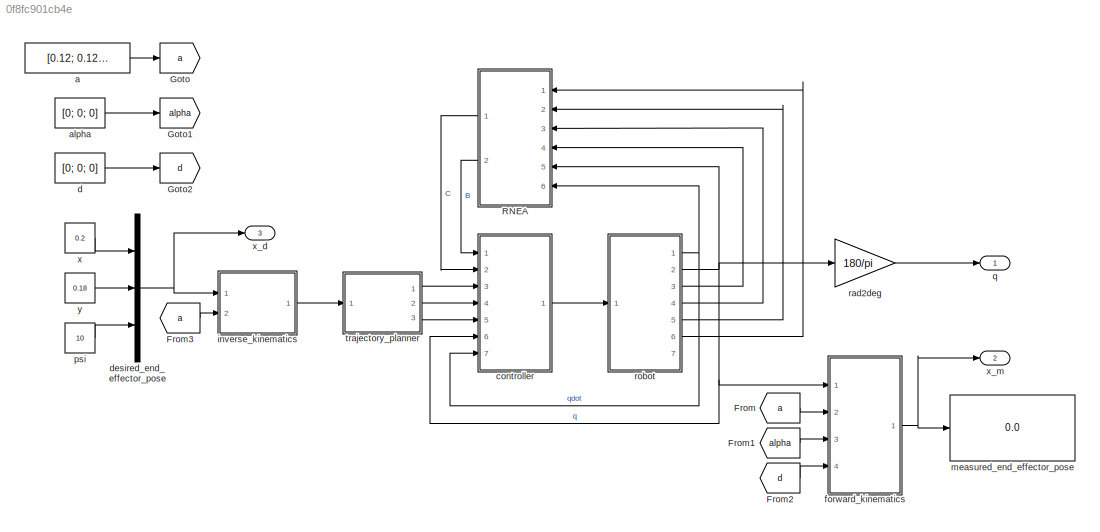
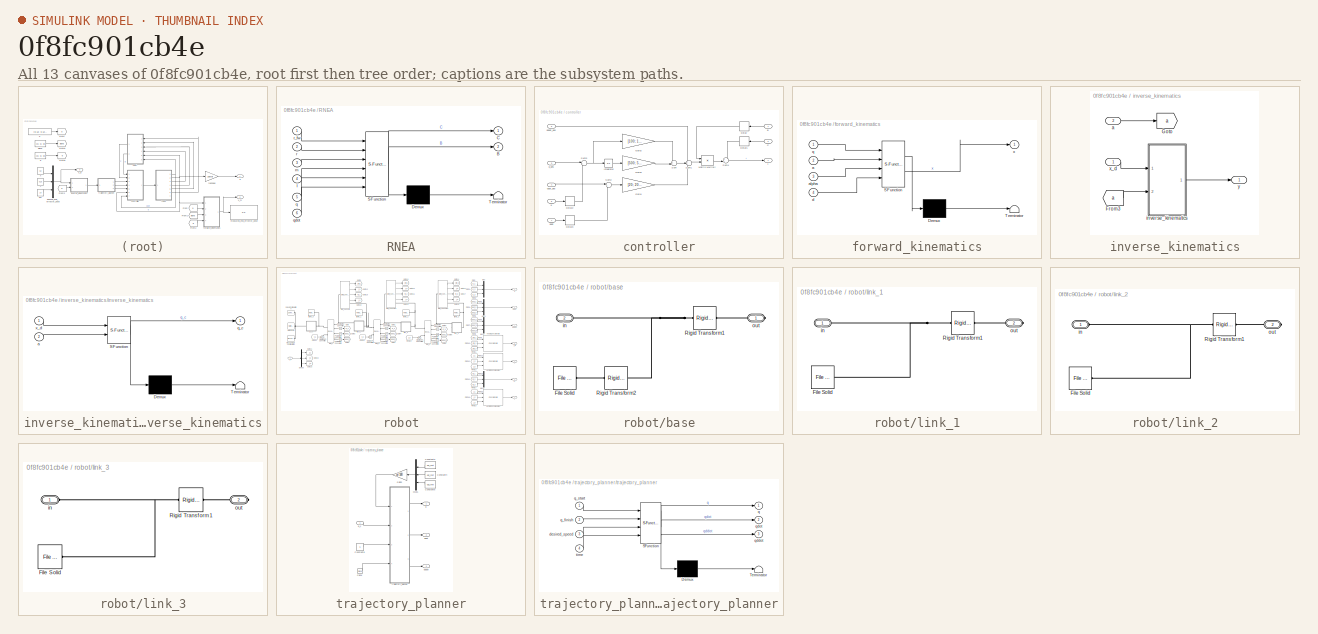
[diagram: thumbnail index - all 13 canvases of the model, root first then tree order]
MODEL slx_0f8fc901cb4e
KIND model
CONFIG AbsTol = 1e-3
CONFIG EnableMultiTasking = on
CONFIG FixedStep = auto
CONFIG InitFcn = parameters;
CONFIG MaxStep = 0.01
CONFIG MinStep = auto
CONFIG RelTol = 1e-3
CONFIG SampleTimeConstraint = Unconstrained
CONFIG SolverName = ode45
CONFIG StartTime = 0.0
CONFIG StopTime = 10
BLOCK [From] From
  GotoTag = a
BLOCK [From] From1
  GotoTag = alpha
BLOCK [From] From2
  GotoTag = d
BLOCK [From] From3
  GotoTag = a
BLOCK [Goto] Goto
  GotoTag = a
BLOCK [Goto] Goto1
  GotoTag = alpha
BLOCK [Goto] Goto2
  GotoTag = d
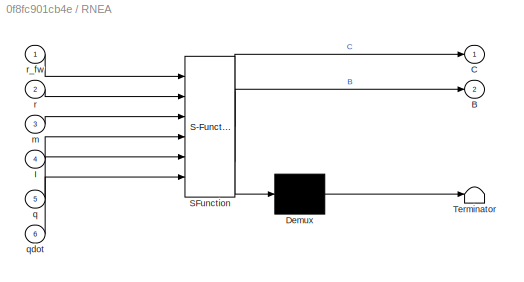
BLOCK [SubSystem] RNEA
  ErrorFcn = Stateflow.Translate.translate
  PermitHierarchicalResolution = ExplicitOnly
  Ports = [6, 2]
  RequestExecContextInheritance = off
  SFBlockType = MATLAB Function
  TreatAsAtomicUnit = on
BLOCK [Demux] RNEA/ Demux 
  Outputs = 1
  Ports = [1, 1]
BLOCK [S-Function] RNEA/ SFunction 
  EnableBusSupport = on
  FunctionName = sf_sfun
  Parameters = g
  PortCounts = [6 3]
  Ports = [6, 3]
  SFcnIsStateOwnerBlock = off
  SFunctionDeploymentMode = off
  Tag = Stateflow S-Function 3
BLOCK [Terminator] RNEA/ Terminator 
BLOCK [Outport] RNEA/B
  Port = 2
BLOCK [Outport] RNEA/C
BLOCK [Inport] RNEA/I
  Port = 4
BLOCK [Inport] RNEA/m
  Port = 3
BLOCK [Inport] RNEA/q
  Port = 5
BLOCK [Inport] RNEA/qdot
  Port = 6
BLOCK [Inport] RNEA/r
  Port = 2
BLOCK [Inport] RNEA/r_fw
BLOCK [Constant] a
  Value = [0.12; 0.12; 0.12]
BLOCK [Constant] alpha
  Value = [0; 0; 0]
BLOCK [SubSystem] controller
  Ports = [7, 1]
  RequestExecContextInheritance = off
BLOCK [Inport] controller/B
BLOCK [Inport] controller/C
  Port = 2
BLOCK [Delay] controller/Delay
  DelayLength = 1
  InputPortMap = u0
  NameLocation = top
  Ports = [1, 1]
BLOCK [Delay] controller/Delay1
  DelayLength = 1
  InputPortMap = u0
  NameLocation = top
  Ports = [1, 1]
BLOCK [Delay] controller/Delay2
  DelayLength = 1
  InputPortMap = u0
  Ports = [1, 1]
BLOCK [Delay] controller/Delay3
  DelayLength = 1
  InputPortMap = u0
  Ports = [1, 1]
BLOCK [Gain] controller/Gain2
  Gain = [100; 100; 100]
BLOCK [Gain] controller/Gain3
  Gain = [500; 500; 500]
BLOCK [Gain] controller/Gain4
  Gain = [20; 20; 20]
BLOCK [Integrator] controller/Integrator
  Ports = [1, 1]
BLOCK [Product] controller/Matrix Multiply
  Inputs = **
  Multiplication = Matrix(*)
  Ports = [2, 1]
BLOCK [Sum] controller/Sum
  Inputs = ++|
  Ports = [2, 1]
BLOCK [Sum] controller/Sum1
  Inputs = +++
  Ports = [3, 1]
BLOCK [Sum] controller/Sum2
  Inputs = |+-
  Ports = [2, 1]
BLOCK [Sum] controller/Sum3
  Inputs = |+-
  Ports = [2, 1]
BLOCK [Sum] controller/Sum4
  Inputs = ++|
  Ports = [2, 1]
BLOCK [Inport] controller/q
  Port = 6
BLOCK [Inport] controller/q_des
  Port = 3
BLOCK [Inport] controller/qddot_des
  Port = 5
BLOCK [Inport] controller/qdot
  Port = 7
BLOCK [Inport] controller/qdot_des
  Port = 4
BLOCK [Outport] controller/t
BLOCK [Constant] d
  Value = [0; 0; 0]
BLOCK [Mux] desired_end_effector_pose
  DisplayOption = bar
  Inputs = 3
  Ports = [3, 1]
BLOCK [SubSystem] forward_kinematics
  ErrorFcn = Stateflow.Translate.translate
  PermitHierarchicalResolution = ExplicitOnly
  Ports = [4, 1]
  RequestExecContextInheritance = off
  SFBlockType = MATLAB Function
  TreatAsAtomicUnit = on
BLOCK [Demux] forward_kinematics/ Demux 
  Outputs = 1
  Ports = [1, 1]
BLOCK [S-Function] forward_kinematics/ SFunction 
  EnableBusSupport = on
  FunctionName = sf_sfun
  PortCounts = [4 2]
  Ports = [4, 2]
  SFcnIsStateOwnerBlock = off
  SFunctionDeploymentMode = off
  Tag = Stateflow S-Function 4
BLOCK [Terminator] forward_kinematics/ Terminator 
BLOCK [Inport] forward_kinematics/a
  Port = 2
BLOCK [Inport] forward_kinematics/alpha
  Port = 3
BLOCK [Inport] forward_kinematics/d
  Port = 4
BLOCK [Inport] forward_kinematics/q
BLOCK [Outport] forward_kinematics/x
BLOCK [SubSystem] inverse_kinematics
  Ports = [2, 1]
  RequestExecContextInheritance = off
BLOCK [From] inverse_kinematics/From3
  GotoTag = a
BLOCK [Goto] inverse_kinematics/Goto
  GotoTag = a
BLOCK [Inport] inverse_kinematics/a
  Port = 2
BLOCK [SubSystem] inverse_kinematics/inverse_kinematics
  ErrorFcn = Stateflow.Translate.translate
  PermitHierarchicalResolution = ExplicitOnly
  Ports = [2, 1]
  RequestExecContextInheritance = off
  SFBlockType = MATLAB Function
  TreatAsAtomicUnit = on
BLOCK [Demux] inverse_kinematics/inverse_kinematics/ Demux 
  Outputs = 1
  Ports = [1, 1]
BLOCK [S-Function] inverse_kinematics/inverse_kinematics/ SFunction 
  EnableBusSupport = on
  FunctionName = sf_sfun
  PortCounts = [2 2]
  Ports = [2, 2]
  SFcnIsStateOwnerBlock = off
  SFunctionDeploymentMode = off
  Tag = Stateflow S-Function 1
BLOCK [Terminator] inverse_kinematics/inverse_kinematics/ Terminator 
BLOCK [Inport] inverse_kinematics/inverse_kinematics/a
  Port = 2
BLOCK [Outport] inverse_kinematics/inverse_kinematics/q_c
BLOCK [Inport] inverse_kinematics/inverse_kinematics/x_d
BLOCK [Inport] inverse_kinematics/x_d
BLOCK [Outport] inverse_kinematics/y
BLOCK [Display] measured_end_effector_pose
  Ports = [1]
BLOCK [Constant] psi
  Value = 10
BLOCK [Outport] q
BLOCK [Gain] rad2deg
  Gain = 180/pi
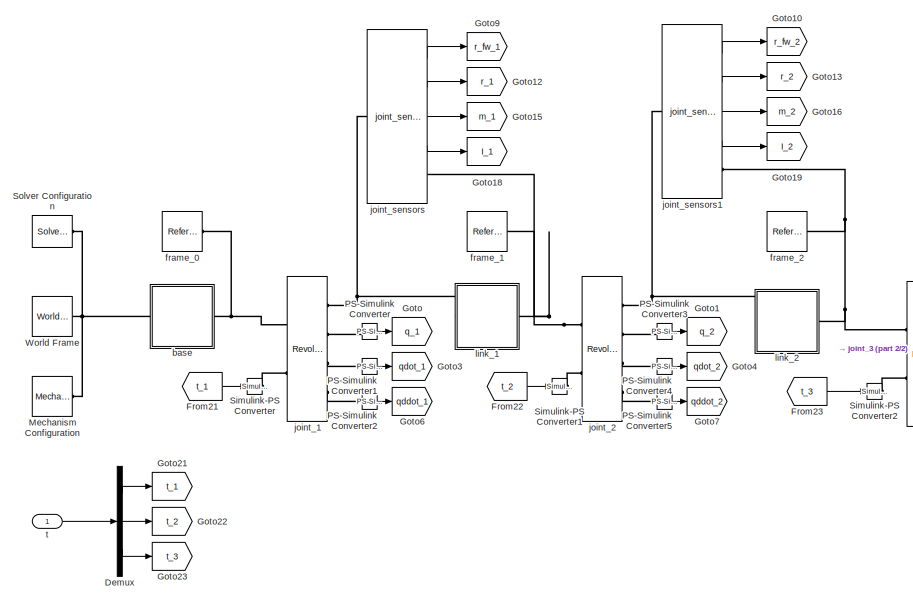
[diagram: robot - part 1/2, middle left region]
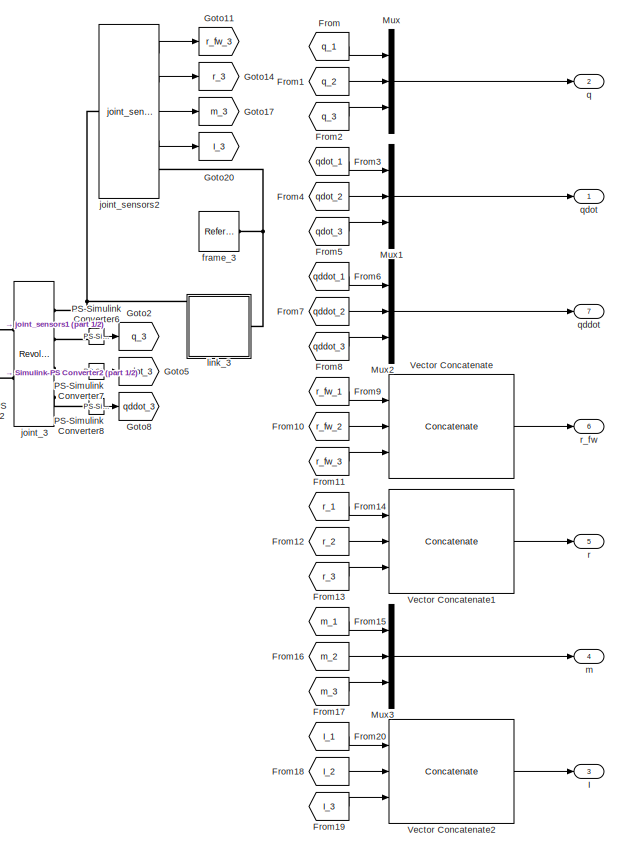
[diagram: robot - part 2/2, right side, full height]
BLOCK [SubSystem] robot
  Ports = [1, 7]
  RequestExecContextInheritance = off
BLOCK [Demux] robot/Demux
  Outputs = 3
  Ports = [1, 3]
BLOCK [From] robot/From
  GotoTag = q_1
BLOCK [From] robot/From1
  GotoTag = q_2
BLOCK [From] robot/From10
  GotoTag = r_fw_2
BLOCK [From] robot/From11
  GotoTag = r_fw_3
BLOCK [From] robot/From12
  GotoTag = r_2
BLOCK [From] robot/From13
  GotoTag = r_3
BLOCK [From] robot/From14
  GotoTag = r_1
BLOCK [From] robot/From15
  GotoTag = m_1
BLOCK [From] robot/From16
  GotoTag = m_2
BLOCK [From] robot/From17
  GotoTag = m_3
BLOCK [From] robot/From18
  GotoTag = I_2
BLOCK [From] robot/From19
  GotoTag = I_3
BLOCK [From] robot/From2
  GotoTag = q_3
BLOCK [From] robot/From20
  GotoTag = I_1
BLOCK [From] robot/From21
  GotoTag = t_1
BLOCK [From] robot/From22
  GotoTag = t_2
BLOCK [From] robot/From23
  GotoTag = t_3
BLOCK [From] robot/From3
  GotoTag = qdot_1
BLOCK [From] robot/From4
  GotoTag = qdot_2
BLOCK [From] robot/From5
  GotoTag = qdot_3
BLOCK [From] robot/From6
  GotoTag = qddot_1
BLOCK [From] robot/From7
  GotoTag = qddot_2
BLOCK [From] robot/From8
  GotoTag = qddot_3
BLOCK [From] robot/From9
  GotoTag = r_fw_1
BLOCK [Goto] robot/Goto
  GotoTag = q_1
BLOCK [Goto] robot/Goto1
  GotoTag = q_2
BLOCK [Goto] robot/Goto10
  GotoTag = r_fw_2
BLOCK [Goto] robot/Goto11
  GotoTag = r_fw_3
BLOCK [Goto] robot/Goto12
  GotoTag = r_1
BLOCK [Goto] robot/Goto13
  GotoTag = r_2
BLOCK [Goto] robot/Goto14
  GotoTag = r_3
BLOCK [Goto] robot/Goto15
  GotoTag = m_1
BLOCK [Goto] robot/Goto16
  GotoTag = m_2
BLOCK [Goto] robot/Goto17
  GotoTag = m_3
BLOCK [Goto] robot/Goto18
  GotoTag = I_1
BLOCK [Goto] robot/Goto19
  GotoTag = I_2
BLOCK [Goto] robot/Goto2
  GotoTag = q_3
BLOCK [Goto] robot/Goto20
  GotoTag = I_3
BLOCK [Goto] robot/Goto21
  GotoTag = t_1
BLOCK [Goto] robot/Goto22
  GotoTag = t_2
BLOCK [Goto] robot/Goto23
  GotoTag = t_3
BLOCK [Goto] robot/Goto3
  GotoTag = qdot_1
BLOCK [Goto] robot/Goto4
  GotoTag = qdot_2
BLOCK [Goto] robot/Goto5
  GotoTag = qdot_3
BLOCK [Goto] robot/Goto6
  GotoTag = qddot_1
BLOCK [Goto] robot/Goto7
  GotoTag = qddot_2
BLOCK [Goto] robot/Goto8
  GotoTag = qddot_3
BLOCK [Goto] robot/Goto9
  GotoTag = r_fw_1
BLOCK [Outport] robot/I
  Port = 3
BLOCK [Reference] robot/Mechanism Configuration  REF=sm_lib/Utilities/Mechanism
Configuration
  Ports = [0, 0, 0, 0, 0, 0, 1]
  SourceBlock = sm_lib/Utilities/Mechanism\nConfiguration
  SourceProductName = Multibody
  SourceType = Mechanism\nConfiguration
BLOCK [Mux] robot/Mux
  DisplayOption = bar
  Inputs = 3
  Ports = [3, 1]
BLOCK [Mux] robot/Mux1
  DisplayOption = bar
  Inputs = 3
  Ports = [3, 1]
BLOCK [Mux] robot/Mux2
  DisplayOption = bar
  Inputs = 3
  Ports = [3, 1]
BLOCK [Mux] robot/Mux3
  DisplayOption = bar
  Inputs = 3
  Ports = [3, 1]
BLOCK [Reference] robot/PS-Simulink Converter  REF=nesl_utility/PS-Simulink
Converter
  Ports = [0, 1, 0, 0, 0, 1]
  SourceBlock = nesl_utility/PS-Simulink\nConverter
  SourceProductBaseCode = SS
  SourceType = PS-Simulink\nConverter
BLOCK [Reference] robot/PS-Simulink Converter1  REF=nesl_utility/PS-Simulink
Converter
  Ports = [0, 1, 0, 0, 0, 1]
  SourceBlock = nesl_utility/PS-Simulink\nConverter
  SourceProductBaseCode = SS
  SourceType = PS-Simulink\nConverter
BLOCK [Reference] robot/PS-Simulink Converter2  REF=nesl_utility/PS-Simulink
Converter
  Ports = [0, 1, 0, 0, 0, 1]
  SourceBlock = nesl_utility/PS-Simulink\nConverter
  SourceProductBaseCode = SS
  SourceType = PS-Simulink\nConverter
BLOCK [Reference] robot/PS-Simulink Converter3  REF=nesl_utility/PS-Simulink
Converter
  Ports = [0, 1, 0, 0, 0, 1]
  SourceBlock = nesl_utility/PS-Simulink\nConverter
  SourceProductBaseCode = SS
  SourceType = PS-Simulink\nConverter
BLOCK [Reference] robot/PS-Simulink Converter4  REF=nesl_utility/PS-Simulink
Converter
  Ports = [0, 1, 0, 0, 0, 1]
  SourceBlock = nesl_utility/PS-Simulink\nConverter
  SourceProductBaseCode = SS
  SourceType = PS-Simulink\nConverter
BLOCK [Reference] robot/PS-Simulink Converter5  REF=nesl_utility/PS-Simulink
Converter
  Ports = [0, 1, 0, 0, 0, 1]
  SourceBlock = nesl_utility/PS-Simulink\nConverter
  SourceProductBaseCode = SS
  SourceType = PS-Simulink\nConverter
BLOCK [Reference] robot/PS-Simulink Converter6  REF=nesl_utility/PS-Simulink
Converter
  Ports = [0, 1, 0, 0, 0, 1]
  SourceBlock = nesl_utility/PS-Simulink\nConverter
  SourceProductBaseCode = SS
  SourceType = PS-Simulink\nConverter
BLOCK [Reference] robot/PS-Simulink Converter7  REF=nesl_utility/PS-Simulink
Converter
  Ports = [0, 1, 0, 0, 0, 1]
  SourceBlock = nesl_utility/PS-Simulink\nConverter
  SourceProductBaseCode = SS
  SourceType = PS-Simulink\nConverter
BLOCK [Reference] robot/PS-Simulink Converter8  REF=nesl_utility/PS-Simulink
Converter
  Ports = [0, 1, 0, 0, 0, 1]
  SourceBlock = nesl_utility/PS-Simulink\nConverter
  SourceProductBaseCode = SS
  SourceType = PS-Simulink\nConverter
BLOCK [Reference] robot/Simulink-PS Converter  REF=nesl_utility/Simulink-PS
Converter
  Ports = [1, 0, 0, 0, 0, 0, 1]
  SourceBlock = nesl_utility/Simulink-PS\nConverter
  SourceProductBaseCode = SS
  SourceType = Simulink-PS\nConverter
BLOCK [Reference] robot/Simulink-PS Converter1  REF=nesl_utility/Simulink-PS
Converter
  Ports = [1, 0, 0, 0, 0, 0, 1]
  SourceBlock = nesl_utility/Simulink-PS\nConverter
  SourceProductBaseCode = SS
  SourceType = Simulink-PS\nConverter
BLOCK [Reference] robot/Simulink-PS Converter2  REF=nesl_utility/Simulink-PS
Converter
  Ports = [1, 0, 0, 0, 0, 0, 1]
  SourceBlock = nesl_utility/Simulink-PS\nConverter
  SourceProductBaseCode = SS
  SourceType = Simulink-PS\nConverter
BLOCK [Reference] robot/Solver Configuration  REF=nesl_utility/Solver
Configuration
  Ports = [0, 0, 0, 0, 0, 0, 1]
  SourceBlock = nesl_utility/Solver\nConfiguration
  SourceProductName = Utilities
  SourceType = Solver\nConfiguration
BLOCK [Concatenate] robot/Vector Concatenate
  ConcatenateDimension = 2
  Mode = Multidimensional array
  NumInputs = 3
  Ports = [3, 1]
BLOCK [Concatenate] robot/Vector Concatenate1
  ConcatenateDimension = 2
  Mode = Multidimensional array
  NumInputs = 3
  Ports = [3, 1]
BLOCK [Concatenate] robot/Vector Concatenate2
  Mode = Multidimensional array
  NumInputs = 3
  Ports = [3, 1]
BLOCK [Reference] robot/World Frame  REF=sm_lib/Frames and
Transforms/World Frame
  Ports = [0, 0, 0, 0, 0, 0, 1]
  SourceBlock = sm_lib/Frames and\nTransforms/World Frame
  SourceProductName = Multibody
  SourceType = World Frame
BLOCK [SubSystem] robot/base
  Ports = [0, 0, 0, 0, 0, 1, 1]
  RequestExecContextInheritance = off
BLOCK [Reference] robot/base/File Solid  REF=sm_lib/Body Elements/File Solid
  Ports = [0, 0, 0, 0, 0, 0, 1]
  SourceBlock = sm_lib/Body Elements/File Solid
  SourceProductBaseCode = MS
  SourceType = File Solid
BLOCK [Reference] robot/base/Rigid Transform1  REF=sm_lib/Frames and
Transforms/Rigid
Transform
  Ports = [0, 0, 0, 0, 0, 1, 1]
  SourceBlock = sm_lib/Frames and\nTransforms/Rigid\nTransform
  SourceProductBaseCode = MS
  SourceType = Rigid\nTransform
BLOCK [Reference] robot/base/Rigid Transform2  REF=sm_lib/Frames and
Transforms/Rigid
Transform
  Ports = [0, 0, 0, 0, 0, 1, 1]
  SourceBlock = sm_lib/Frames and\nTransforms/Rigid\nTransform
  SourceProductBaseCode = MS
  SourceType = Rigid\nTransform
BLOCK [PMIOPort] robot/base/in
  Port = 2
  Side = Left
BLOCK [PMIOPort] robot/base/out
  Side = Right
BLOCK [Reference] robot/frame_0  REF=sm_lib/Frames and
Transforms/Reference
Frame
  Ports = [0, 0, 0, 0, 0, 0, 1]
  SourceBlock = sm_lib/Frames and\nTransforms/Reference\nFrame
  SourceProductBaseCode = MS
  SourceType = Reference\nFrame
BLOCK [Reference] robot/frame_1  REF=sm_lib/Frames and
Transforms/Reference
Frame
  Ports = [0, 0, 0, 0, 0, 0, 1]
  SourceBlock = sm_lib/Frames and\nTransforms/Reference\nFrame
  SourceProductBaseCode = MS
  SourceType = Reference\nFrame
BLOCK [Reference] robot/frame_2  REF=sm_lib/Frames and
Transforms/Reference
Frame
  Ports = [0, 0, 0, 0, 0, 0, 1]
  SourceBlock = sm_lib/Frames and\nTransforms/Reference\nFrame
  SourceProductBaseCode = MS
  SourceType = Reference\nFrame
BLOCK [Reference] robot/frame_3  REF=sm_lib/Frames and
Transforms/Reference
Frame
  Ports = [0, 0, 0, 0, 0, 0, 1]
  SourceBlock = sm_lib/Frames and\nTransforms/Reference\nFrame
  SourceProductBaseCode = MS
  SourceType = Reference\nFrame
BLOCK [Reference] robot/joint_1  REF=sm_lib/Joints/Revolute Joint
  Ports = [0, 0, 0, 0, 0, 2, 4]
  SourceBlock = sm_lib/Joints/Revolute Joint
  SourceProductBaseCode = MS
  SourceType = Revolute Joint
BLOCK [Reference] robot/joint_2  REF=sm_lib/Joints/Revolute Joint
  Ports = [0, 0, 0, 0, 0, 2, 4]
  SourceBlock = sm_lib/Joints/Revolute Joint
  SourceProductBaseCode = MS
  SourceType = Revolute Joint
BLOCK [Reference] robot/joint_3  REF=sm_lib/Joints/Revolute Joint
  Ports = [0, 0, 0, 0, 0, 2, 4]
  SourceBlock = sm_lib/Joints/Revolute Joint
  SourceProductBaseCode = MS
  SourceType = Revolute Joint
BLOCK [Reference] robot/joint_sensors  REF=robot_arms_library/joint_sensors  (lib defined in slx_32957a7d959d)
  Ports = [0, 4, 0, 0, 0, 1, 1]
  SourceBlock = robot_arms_library/joint_sensors
BLOCK [Reference] robot/joint_sensors1  REF=robot_arms_library/joint_sensors  (lib defined in slx_32957a7d959d)
  Ports = [0, 4, 0, 0, 0, 1, 1]
  SourceBlock = robot_arms_library/joint_sensors
BLOCK [Reference] robot/joint_sensors2  REF=robot_arms_library/joint_sensors  (lib defined in slx_32957a7d959d)
  Ports = [0, 4, 0, 0, 0, 1, 1]
  SourceBlock = robot_arms_library/joint_sensors
BLOCK [SubSystem] robot/link_1
  Ports = [0, 0, 0, 0, 0, 1, 1]
  RequestExecContextInheritance = off
BLOCK [Reference] robot/link_1/File Solid  REF=sm_lib/Body Elements/File Solid
  Ports = [0, 0, 0, 0, 0, 0, 1]
  SourceBlock = sm_lib/Body Elements/File Solid
  SourceProductBaseCode = MS
  SourceType = File Solid
BLOCK [Reference] robot/link_1/Rigid Transform1  REF=sm_lib/Frames and
Transforms/Rigid
Transform
  Ports = [0, 0, 0, 0, 0, 1, 1]
  SourceBlock = sm_lib/Frames and\nTransforms/Rigid\nTransform
  SourceProductBaseCode = MS
  SourceType = Rigid\nTransform
BLOCK [PMIOPort] robot/link_1/in
  Side = Left
BLOCK [PMIOPort] robot/link_1/out
  Port = 2
  Side = Right
BLOCK [SubSystem] robot/link_2
  Ports = [0, 0, 0, 0, 0, 1, 1]
  RequestExecContextInheritance = off
BLOCK [Reference] robot/link_2/File Solid  REF=sm_lib/Body Elements/File Solid
  Ports = [0, 0, 0, 0, 0, 0, 1]
  SourceBlock = sm_lib/Body Elements/File Solid
  SourceProductBaseCode = MS
  SourceType = File Solid
BLOCK [Reference] robot/link_2/Rigid Transform1  REF=sm_lib/Frames and
Transforms/Rigid
Transform
  Ports = [0, 0, 0, 0, 0, 1, 1]
  SourceBlock = sm_lib/Frames and\nTransforms/Rigid\nTransform
  SourceProductBaseCode = MS
  SourceType = Rigid\nTransform
BLOCK [PMIOPort] robot/link_2/in
  Side = Left
BLOCK [PMIOPort] robot/link_2/out
  Port = 2
  Side = Right
BLOCK [SubSystem] robot/link_3
  Ports = [0, 0, 0, 0, 0, 1, 1]
  RequestExecContextInheritance = off
BLOCK [Reference] robot/link_3/File Solid  REF=sm_lib/Body Elements/File Solid
  Ports = [0, 0, 0, 0, 0, 0, 1]
  SourceBlock = sm_lib/Body Elements/File Solid
  SourceProductBaseCode = MS
  SourceType = File Solid
BLOCK [Reference] robot/link_3/Rigid Transform1  REF=sm_lib/Frames and
Transforms/Rigid
Transform
  Ports = [0, 0, 0, 0, 0, 1, 1]
  SourceBlock = sm_lib/Frames and\nTransforms/Rigid\nTransform
  SourceProductBaseCode = MS
  SourceType = Rigid\nTransform
BLOCK [PMIOPort] robot/link_3/in
  Side = Left
BLOCK [PMIOPort] robot/link_3/out
  Port = 2
  Side = Right
BLOCK [Outport] robot/m
  Port = 4
BLOCK [Outport] robot/q
  Port = 2
  PortDimensions = [3,1]
BLOCK [Outport] robot/qddot
  Port = 7
  PortDimensions = [3,1]
BLOCK [Outport] robot/qdot
  PortDimensions = [3,1]
BLOCK [Outport] robot/r
  Port = 5
BLOCK [Outport] robot/r_fw
  Port = 6
BLOCK [Inport] robot/t
BLOCK [SubSystem] trajectory_planner
  Ports = [1, 3]
  RequestExecContextInheritance = off
BLOCK [Clock] trajectory_planner/Clock
BLOCK [Constant] trajectory_planner/Constant3
  NameLocation = top
  Value = q1_init
BLOCK [Constant] trajectory_planner/Constant4
  NameLocation = top
  Value = q2_init
BLOCK [Constant] trajectory_planner/Constant5
  NameLocation = top
  Value = q3_init
BLOCK [Constant] trajectory_planner/Constant6
  Value = 5
BLOCK [Gain] trajectory_planner/Gain2
  Gain = pi/180
  NameLocation = top
BLOCK [Mux] trajectory_planner/Mux1
  DisplayOption = bar
  Inputs = 3
  NameLocation = top
  Ports = [3, 1]
BLOCK [Outport] trajectory_planner/q
BLOCK [Inport] trajectory_planner/q_c
BLOCK [Outport] trajectory_planner/qddot
  Port = 3
BLOCK [Outport] trajectory_planner/qdot
  Port = 2
BLOCK [SubSystem] trajectory_planner/trajectory_planner
  ErrorFcn = Stateflow.Translate.translate
  PermitHierarchicalResolution = ExplicitOnly
  Ports = [4, 3]
  RequestExecContextInheritance = off
  SFBlockType = MATLAB Function
  TreatAsAtomicUnit = on
BLOCK [Demux] trajectory_planner/trajectory_planner/ Demux 
  Outputs = 1
  Ports = [1, 1]
BLOCK [S-Function] trajectory_planner/trajectory_planner/ SFunction 
  EnableBusSupport = on
  FunctionName = sf_sfun
  PortCounts = [4 4]
  Ports = [4, 4]
  SFcnIsStateOwnerBlock = off
  SFunctionDeploymentMode = off
  Tag = Stateflow S-Function 2
BLOCK [Terminator] trajectory_planner/trajectory_planner/ Terminator 
BLOCK [Inport] trajectory_planner/trajectory_planner/desired_speed
  Port = 3
BLOCK [Outport] trajectory_planner/trajectory_planner/q
BLOCK [Inport] trajectory_planner/trajectory_planner/q_finish
  Port = 2
BLOCK [Inport] trajectory_planner/trajectory_planner/q_start
BLOCK [Outport] trajectory_planner/trajectory_planner/qddot
  Port = 3
BLOCK [Outport] trajectory_planner/trajectory_planner/qdot
  Port = 2
BLOCK [Inport] trajectory_planner/trajectory_planner/time
  Port = 4
BLOCK [Constant] x
  Value = 0.2
BLOCK [Outport] x_d
  Port = 3
BLOCK [Outport] x_m
  Port = 2
BLOCK [Constant] y
  Value = 0.18
LINE From1:1 -> forward_kinematics:3
LINE From2:1 -> forward_kinematics:4
LINE From3:1 -> inverse_kinematics:2
LINE From:1 -> forward_kinematics:2
LINE RNEA:1 -> controller:2
LINE RNEA:2 -> controller:1
LINE a:1 -> Goto:1
LINE alpha:1 -> Goto1:1
LINE controller/B:1 -> controller/Delay:1
LINE controller/C:1 -> controller/Delay1:1
LINE controller/Delay1:1 -> controller/Sum4:1
LINE controller/Delay2:1 -> controller/Sum3:2
LINE controller/Delay3:1 -> controller/Sum2:2
LINE controller/Delay:1 -> controller/Matrix Multiply:1
LINE controller/Gain2:1 -> controller/Sum:1
LINE controller/Gain3:1 -> controller/Sum:2
LINE controller/Gain4:1 -> controller/Sum1:3
LINE controller/Integrator:1 -> controller/Gain3:1
LINE controller/Matrix Multiply:1 -> controller/Sum4:2
LINE controller/Sum1:1 -> controller/Matrix Multiply:2
LINE controller/Sum2:1 -> controller/Gain4:1
NET controller/Sum3:1 -> controller/Gain2:1, controller/Integrator:1
LINE controller/Sum4:1 -> controller/t:1
LINE controller/Sum:1 -> controller/Sum1:2
LINE controller/q:1 -> controller/Delay2:1
LINE controller/q_des:1 -> controller/Sum3:1
LINE controller/qddot_des:1 -> controller/Sum1:1
LINE controller/qdot:1 -> controller/Delay3:1
LINE controller/qdot_des:1 -> controller/Sum2:1
LINE controller:1 -> robot:1
LINE d:1 -> Goto2:1
NET desired_end_effector_pose:1 -> inverse_kinematics:1, x_d:1
NET forward_kinematics:1 -> measured_end_effector_pose:1, x_m:1
LINE inverse_kinematics/From3:1 -> inverse_kinematics/inverse_kinematics:2
LINE inverse_kinematics/a:1 -> inverse_kinematics/Goto:1
LINE inverse_kinematics/inverse_kinematics:1 -> inverse_kinematics/y:1
LINE inverse_kinematics/x_d:1 -> inverse_kinematics/inverse_kinematics:1
LINE inverse_kinematics:1 -> trajectory_planner:1
LINE psi:1 -> desired_end_effector_pose:3
LINE rad2deg:1 -> q:1
LINE robot/Demux:1 -> robot/Goto21:1
LINE robot/Demux:2 -> robot/Goto22:1
LINE robot/Demux:3 -> robot/Goto23:1
LINE robot/From10:1 -> robot/Vector Concatenate:2
LINE robot/From11:1 -> robot/Vector Concatenate:3
LINE robot/From12:1 -> robot/Vector Concatenate1:2
LINE robot/From13:1 -> robot/Vector Concatenate1:3
LINE robot/From14:1 -> robot/Vector Concatenate1:1
LINE robot/From15:1 -> robot/Mux3:1
LINE robot/From16:1 -> robot/Mux3:2
LINE robot/From17:1 -> robot/Mux3:3
LINE robot/From18:1 -> robot/Vector Concatenate2:2
LINE robot/From19:1 -> robot/Vector Concatenate2:3
LINE robot/From1:1 -> robot/Mux:2
LINE robot/From20:1 -> robot/Vector Concatenate2:1
LINE robot/From21:1 -> robot/Simulink-PS Converter:1
LINE robot/From22:1 -> robot/Simulink-PS Converter1:1
LINE robot/From23:1 -> robot/Simulink-PS Converter2:1
LINE robot/From2:1 -> robot/Mux:3
LINE robot/From3:1 -> robot/Mux1:1
LINE robot/From4:1 -> robot/Mux1:2
LINE robot/From5:1 -> robot/Mux1:3
LINE robot/From6:1 -> robot/Mux2:1
LINE robot/From7:1 -> robot/Mux2:2
LINE robot/From8:1 -> robot/Mux2:3
LINE robot/From9:1 -> robot/Vector Concatenate:1
LINE robot/From:1 -> robot/Mux:1
LINE robot/Mux1:1 -> robot/qdot:1
LINE robot/Mux2:1 -> robot/qddot:1
LINE robot/Mux3:1 -> robot/m:1
LINE robot/Mux:1 -> robot/q:1
LINE robot/PS-Simulink Converter1:1 -> robot/Goto3:1
LINE robot/PS-Simulink Converter2:1 -> robot/Goto6:1
LINE robot/PS-Simulink Converter3:1 -> robot/Goto1:1
LINE robot/PS-Simulink Converter4:1 -> robot/Goto4:1
LINE robot/PS-Simulink Converter5:1 -> robot/Goto7:1
LINE robot/PS-Simulink Converter6:1 -> robot/Goto2:1
LINE robot/PS-Simulink Converter7:1 -> robot/Goto5:1
LINE robot/PS-Simulink Converter8:1 -> robot/Goto8:1
LINE robot/PS-Simulink Converter:1 -> robot/Goto:1
LINE robot/Vector Concatenate1:1 -> robot/r:1
LINE robot/Vector Concatenate2:1 -> robot/I:1
LINE robot/Vector Concatenate:1 -> robot/r_fw:1
LINE robot/joint_sensors1:1 -> robot/Goto10:1
LINE robot/joint_sensors1:2 -> robot/Goto13:1
LINE robot/joint_sensors1:3 -> robot/Goto16:1
LINE robot/joint_sensors1:4 -> robot/Goto19:1
LINE robot/joint_sensors2:1 -> robot/Goto11:1
LINE robot/joint_sensors2:2 -> robot/Goto14:1
LINE robot/joint_sensors2:3 -> robot/Goto17:1
LINE robot/joint_sensors2:4 -> robot/Goto20:1
LINE robot/joint_sensors:1 -> robot/Goto9:1
LINE robot/joint_sensors:2 -> robot/Goto12:1
LINE robot/joint_sensors:3 -> robot/Goto15:1
LINE robot/joint_sensors:4 -> robot/Goto18:1
LINE robot/t:1 -> robot/Demux:1
NET robot:1 -> RNEA:6, controller:7
NET robot:2 -> RNEA:5, controller:6, forward_kinematics:1, rad2deg:1
LINE robot:3 -> RNEA:4
LINE robot:4 -> RNEA:3
LINE robot:5 -> RNEA:2
LINE robot:6 -> RNEA:1
LINE trajectory_planner/Clock:1 -> trajectory_planner/trajectory_planner:4
LINE trajectory_planner/Constant3:1 -> trajectory_planner/Mux1:1
LINE trajectory_planner/Constant4:1 -> trajectory_planner/Mux1:2
LINE trajectory_planner/Constant5:1 -> trajectory_planner/Mux1:3
LINE trajectory_planner/Constant6:1 -> trajectory_planner/trajectory_planner:3
LINE trajectory_planner/Gain2:1 -> trajectory_planner/trajectory_planner:1
LINE trajectory_planner/Mux1:1 -> trajectory_planner/Gain2:1
LINE trajectory_planner/q_c:1 -> trajectory_planner/trajectory_planner:2
LINE trajectory_planner/trajectory_planner:1 -> trajectory_planner/q:1
LINE trajectory_planner/trajectory_planner:2 -> trajectory_planner/qdot:1
LINE trajectory_planner/trajectory_planner:3 -> trajectory_planner/qddot:1
LINE trajectory_planner:1 -> controller:3
LINE trajectory_planner:2 -> controller:4
LINE trajectory_planner:3 -> controller:5
LINE x:1 -> desired_end_effector_pose:1
LINE y:1 -> desired_end_effector_pose:2
PNET net1: robot/Mechanism Configuration:RConn1 -- robot/Solver Configuration:RConn1 -- robot/World Frame:RConn1 -- robot/base:LConn1
PLINE robot/PS-Simulink Converter1:LConn1 -- robot/joint_1:RConn3
PLINE robot/PS-Simulink Converter2:LConn1 -- robot/joint_1:RConn4
PLINE robot/PS-Simulink Converter3:LConn1 -- robot/joint_2:RConn2
PLINE robot/PS-Simulink Converter4:LConn1 -- robot/joint_2:RConn3
PLINE robot/PS-Simulink Converter5:LConn1 -- robot/joint_2:RConn4
PLINE robot/PS-Simulink Converter6:LConn1 -- robot/joint_3:RConn2
PLINE robot/PS-Simulink Converter7:LConn1 -- robot/joint_3:RConn3
PLINE robot/PS-Simulink Converter8:LConn1 -- robot/joint_3:RConn4
PLINE robot/PS-Simulink Converter:LConn1 -- robot/joint_1:RConn2
PLINE robot/Simulink-PS Converter1:RConn1 -- robot/joint_2:LConn2
PLINE robot/Simulink-PS Converter2:RConn1 -- robot/joint_3:LConn2
PLINE robot/Simulink-PS Converter:RConn1 -- robot/joint_1:LConn2
PLINE robot/base/File Solid:RConn1 -- robot/base/Rigid Transform2:LConn1
PNET net2: robot/base/Rigid Transform1:LConn1 -- robot/base/Rigid Transform2:RConn1 -- robot/base/in:RConn1
PLINE robot/base/Rigid Transform1:RConn1 -- robot/base/out:RConn1
PNET net3: robot/base:RConn1 -- robot/frame_0:RConn1 -- robot/joint_1:LConn1
PNET net4: robot/frame_1:RConn1 -- robot/joint_2:LConn1 -- robot/joint_sensors:RConn1 -- robot/link_1:RConn1
PNET net5: robot/frame_2:RConn1 -- robot/joint_3:LConn1 -- robot/joint_sensors1:RConn1 -- robot/link_2:RConn1
PNET net6: robot/frame_3:RConn1 -- robot/joint_sensors2:RConn1 -- robot/link_3:RConn1
PNET net7: robot/joint_1:RConn1 -- robot/joint_sensors:LConn1 -- robot/link_1:LConn1
PNET net8: robot/joint_2:RConn1 -- robot/joint_sensors1:LConn1 -- robot/link_2:LConn1
PNET net9: robot/joint_3:RConn1 -- robot/joint_sensors2:LConn1 -- robot/link_3:LConn1
PNET net10: robot/link_1/File Solid:RConn1 -- robot/link_1/Rigid Transform1:LConn1 -- robot/link_1/in:RConn1
PLINE robot/link_1/Rigid Transform1:RConn1 -- robot/link_1/out:RConn1
PNET net11: robot/link_2/File Solid:RConn1 -- robot/link_2/Rigid Transform1:LConn1 -- robot/link_2/in:RConn1
PLINE robot/link_2/Rigid Transform1:RConn1 -- robot/link_2/out:RConn1
PNET net12: robot/link_3/File Solid:RConn1 -- robot/link_3/Rigid Transform1:LConn1 -- robot/link_3/in:RConn1
PLINE robot/link_3/Rigid Transform1:RConn1 -- robot/link_3/out:RConn1
note: NET lines group one-source signal fan-out (src -> all destinations, sorted); 1:1 wires keep LINE; PNET lines group multi-terminal physical nets as a canonical sorted terminal list (undirected conserving connections); 2-terminal nets keep the pairwise PLINE form
CHART inverse_kinematics/inverse_kinematics states=1 transitions=1
  STATE_LABEL 'eML_blk_kernel()'
  STATE_LABEL 'SCRIPT:\nfunction q_c = fcn(x_d, a)\nq_c = three_link_planar_arm_IK(x_d, a);\n\n'
CHART trajectory_planner/trajectory_planner states=1 transitions=1
  STATE_LABEL 'eML_blk_kernel()'
  STATE_LABEL 'SCRIPT:\nfunction [q, qdot, qddot] = fcn(q_start, q_finish, desired_speed, time)\nn = length(q_start);\n\nq_diff = abs(q_start - q_finish);\nq_max = max(q_diff);\ntime_taken = q_max/((pi/30)*desired_speed);\nspeeds = zeros(n,1);\n    \n    for i = 1:1:n\n        if q_diff(i,1) == q_max\n            speeds(i,1) = desired_speed;\n        else\n            speeds(i,1) = (30/pi)*q_diff(i,1)/time_taken;\n        end...<+395ch>'
CHART RNEA states=1 transitions=1
  STATE_LABEL 'eML_blk_kernel()'
  STATE_LABEL "SCRIPT:\nfunction [C, B] = fcn(r_fw, r, m, I, q, qdot, g)\nr_bw = r_fw;\npddot_init = [0; g; 0];\nalpha = zeros(3,1);\nkr = ones(3,1);\nzm = [zeros(2,3); ones(1,3)];\nIm = zeros(3,1);\njoint_type = ['r'; 'r'; 'r'];\ns = RNEA(joint_type, q, alpha, r, r_bw, kr, zm, m, I, Im);\n[B, C] = s.dynamic_matrices(qdot, pddot_init);\nend"
CHART forward_kinematics states=1 transitions=1
  STATE_LABEL 'eML_blk_kernel()'
  STATE_LABEL "SCRIPT:\nfunction x = fcn(q, a, alpha, d)\njoint_type = ['r'; 'r'; 'r'];\ns = forward_kinematics(joint_type, q, a, alpha, d);\nx_m = s.end_effector_pose();\nx = [x_m(1:2,:); (180/pi)*x_m(6,:)];\n\n"
CHART  states=0 transitions=0
CHART  states=0 transitions=0
CHART  states=0 transitions=0
CHART  states=0 transitions=0
